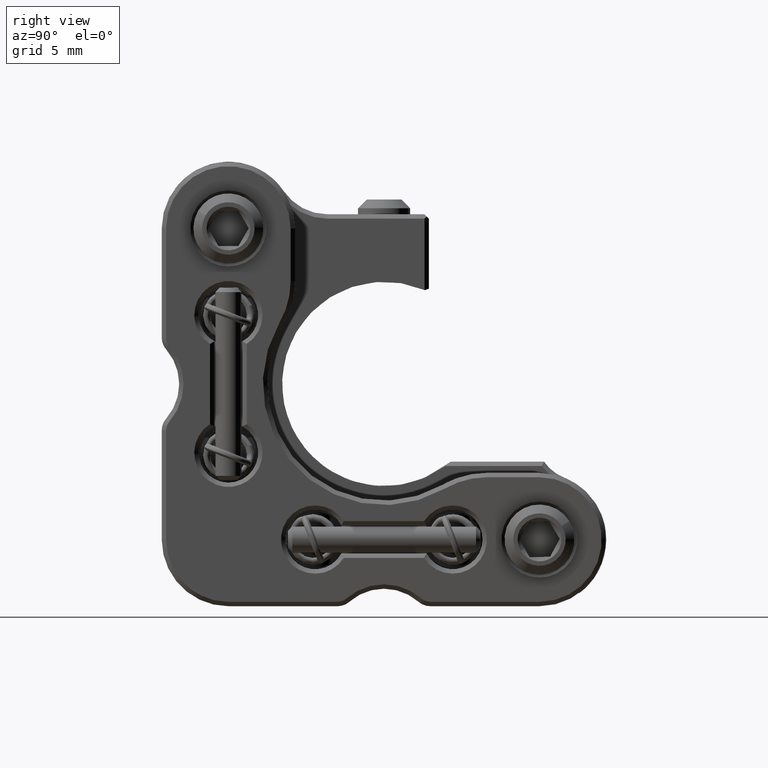
[diagram: clean part render]
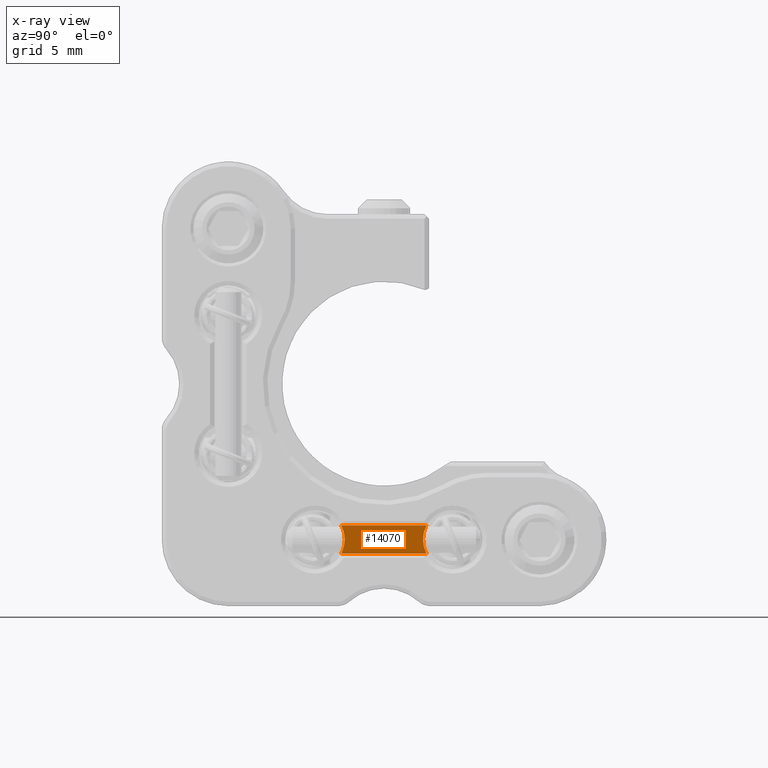
[diagram: x-ray — body ghosted, one internal face saturated and labeled with its STEP entity id]
A machine part, right view, then the same camera in x-ray: the body is ghosted and one INTERNAL B-rep face — a face not visible from any outside direction — is saturated and labeled: STEP entity #14070.
In plain terms, the highlighted planar face has unit normal (1, 0, 0).
Its self-contained STEP definition (entity closure, byte-faithful):
#923 = CIRCLE ( 'NONE', #41697, 1.700000000000000178 ) ;
#1127 = CARTESIAN_POINT ( 'NONE',  ( 3.000000000000000000, -2.435000000000000497, -8.089999999999996305 ) ) ;
#2598 = CARTESIAN_POINT ( 'NONE',  ( 3.000000000000000000, -3.935000000000000053, -8.889999999999997016 ) ) ;
#3213 = DIRECTION ( 'NONE',  ( -1.000000000000000000, 0.000000000000000000, 0.000000000000000000 ) ) ;
#3443 = CARTESIAN_POINT ( 'NONE',  ( 3.000000000000000000, -3.935000000000000053, -9.689999999999997726 ) ) ;
#6625 = FACE_OUTER_BOUND ( 'NONE', #47215, .T. ) ;
#6686 = CARTESIAN_POINT ( 'NONE',  ( 3.000000000000000000, -2.435000000000000497, -9.689999999999997726 ) ) ;
#9859 = VERTEX_POINT ( 'NONE', #6686 ) ;
#10595 = VECTOR ( 'NONE', #52441, 1000.000000000000000 ) ;
#12768 = VERTEX_POINT ( 'NONE', #19454 ) ;
#14070 = ADVANCED_FACE ( 'NONE', ( #6625 ), #28451, .T. ) ;
#16506 = CARTESIAN_POINT ( 'NONE',  ( 3.000000000000000000, -3.935000000000000053, -8.089999999999996305 ) ) ;
#16749 = CARTESIAN_POINT ( 'NONE',  ( 3.000000000000000000, 2.435000000000000497, -8.089999999999996305 ) ) ;
#16835 = DIRECTION ( 'NONE',  ( 0.000000000000000000, 0.000000000000000000, -1.000000000000000000 ) ) ;
#17166 = LINE ( 'NONE', #16506, #10595 ) ;
#19454 = CARTESIAN_POINT ( 'NONE',  ( 3.000000000000000000, 2.435000000000000497, -9.689999999999997726 ) ) ;
#23413 = DIRECTION ( 'NONE',  ( 1.000000000000000000, 0.000000000000000000, 0.000000000000000000 ) ) ;
#23931 = LINE ( 'NONE', #3443, #26627 ) ;
#26627 = VECTOR ( 'NONE', #44435, 1000.000000000000000 ) ;
#28451 = PLANE ( 'NONE',  #48797 ) ;
#28730 = CARTESIAN_POINT ( 'NONE',  ( 3.000000000000000000, 3.935000000000000053, -8.889999999999997016 ) ) ;
#36534 = CIRCLE ( 'NONE', #47259, 1.700000000000000178 ) ;
#37345 = CARTESIAN_POINT ( 'NONE',  ( 3.000000000000000000, -3.935000000000000053, -8.889999999999997016 ) ) ;
#38217 = ORIENTED_EDGE ( 'NONE', *, *, #52105, .T. ) ;
#39172 = DIRECTION ( 'NONE',  ( 0.000000000000000000, 0.000000000000000000, -1.000000000000000000 ) ) ;
#40589 = EDGE_CURVE ( 'NONE', #9859, #12768, #23931, .T. ) ;
#41697 = AXIS2_PLACEMENT_3D ( 'NONE', #37345, #52112, #16835 ) ;
#44418 = ORIENTED_EDGE ( 'NONE', *, *, #51720, .T. ) ;
#44435 = DIRECTION ( 'NONE',  ( 0.000000000000000000, 1.000000000000000000, 0.000000000000000000 ) ) ;
#47215 = EDGE_LOOP ( 'NONE', ( #38217, #58268, #66228, #44418 ) ) ;
#47259 = AXIS2_PLACEMENT_3D ( 'NONE', #28730, #3213, #39172 ) ;
#48797 = AXIS2_PLACEMENT_3D ( 'NONE', #2598, #23413, #48944 ) ;
#48944 = DIRECTION ( 'NONE',  ( 0.000000000000000000, 0.000000000000000000, -1.000000000000000000 ) ) ;
#51720 = EDGE_CURVE ( 'NONE', #58344, #64651, #17166, .T. ) ;
#52105 = EDGE_CURVE ( 'NONE', #64651, #9859, #923, .T. ) ;
#52112 = DIRECTION ( 'NONE',  ( -1.000000000000000000, 0.000000000000000000, 0.000000000000000000 ) ) ;
#52441 = DIRECTION ( 'NONE',  ( -0.000000000000000000, -1.000000000000000000, -0.000000000000000000 ) ) ;
#58268 = ORIENTED_EDGE ( 'NONE', *, *, #40589, .T. ) ;
#58344 = VERTEX_POINT ( 'NONE', #16749 ) ;
#64651 = VERTEX_POINT ( 'NONE', #1127 ) ;
#66217 = EDGE_CURVE ( 'NONE', #12768, #58344, #36534, .T. ) ;
#66228 = ORIENTED_EDGE ( 'NONE', *, *, #66217, .T. ) ;